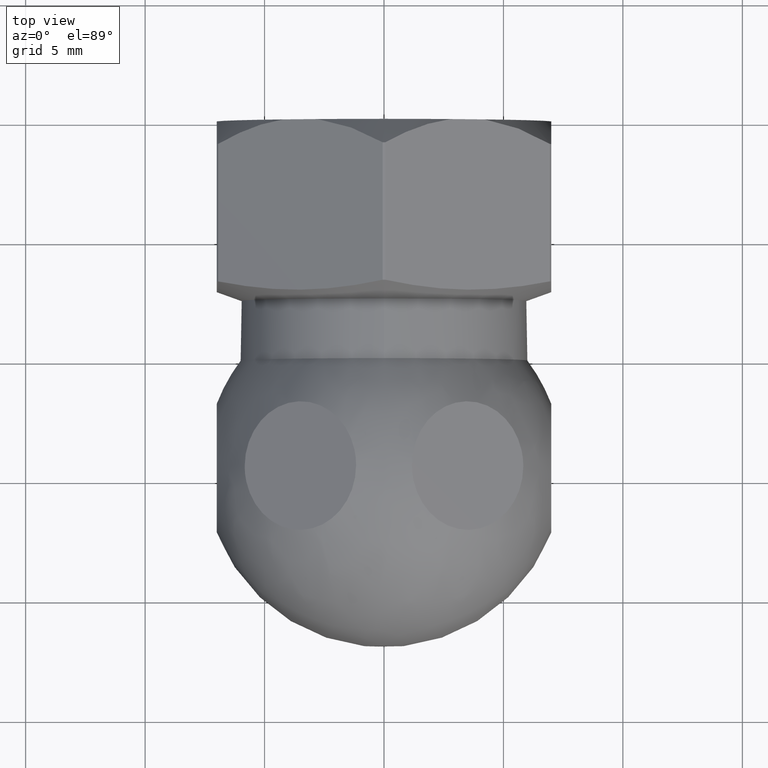
[diagram: clean part render]
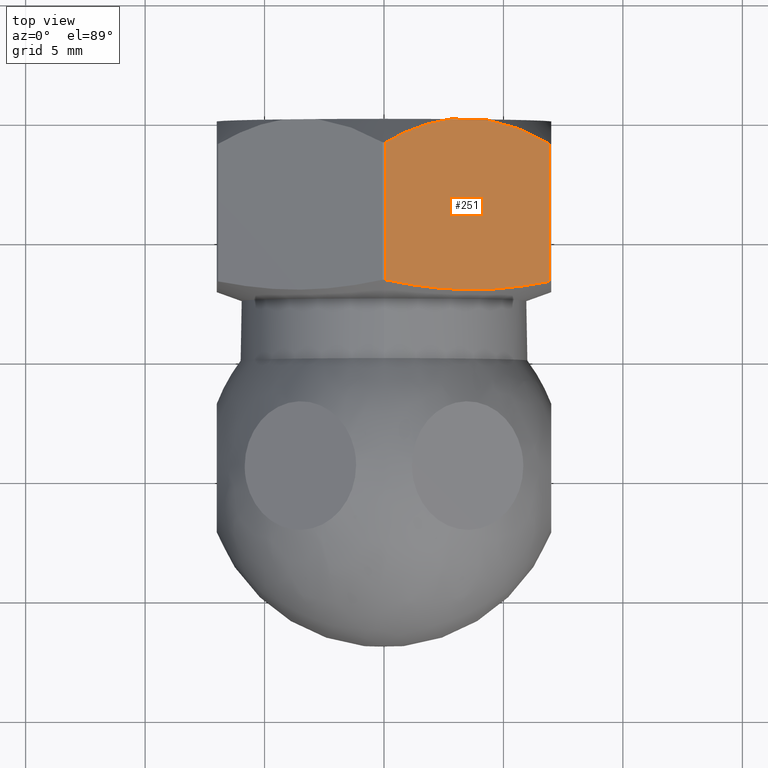
[diagram: same view with one face highlighted and labeled with its STEP entity id]
A machine part, top view. The second image highlights one B-rep face of the part: STEP entity #251.
In plain terms, the highlighted planar face has unit normal (0.5, -0, 0.866).
Its self-contained STEP definition (entity closure, byte-faithful):
#33 = CARTESIAN_POINT ( 'NONE',  ( 2.295191695800010900, -0.06574922584034688400, 6.757774225242832800 ) ) ;
#80 = FACE_OUTER_BOUND ( 'NONE', #336, .T. ) ;
#95 = CARTESIAN_POINT ( 'NONE',  ( 6.942655225258548100, -1.000000000000000900, 4.074559905460978900 ) ) ;
#109 = AXIS2_PLACEMENT_3D ( 'NONE', #254, #856, #133 ) ;
#111 = ORIENTED_EDGE ( 'NONE', *, *, #252, .T. ) ;
#133 = DIRECTION ( 'NONE',  ( 0.8660254037844387100, 0.0000000000000000000, -0.4999999999999998900 ) ) ;
#139 = B_SPLINE_CURVE_WITH_KNOTS ( 'NONE', 3,
 ( #272, #33, #1224, #770, #289, #896 ),
 .UNSPECIFIED., .F., .F.,
 ( 4, 2, 4 ),
 ( 5.280302018982779200E-018, 0.001646477452302868700, 0.003292954904605732200 ),
 .UNSPECIFIED. ) ;
#158 = VECTOR ( 'NONE', #993, 1000.000000000000000 ) ;
#180 = CARTESIAN_POINT ( 'NONE',  ( 2.774138442952029000, 2.860369802980142100E-016, 6.481254191847118500 ) ) ;
#204 = CARTESIAN_POINT ( 'NONE',  ( 4.225861557047968700, 0.0000000000000000000, 5.643101461135026800 ) ) ;
#208 = VERTEX_POINT ( 'NONE', #1062 ) ;
#251 = ADVANCED_FACE ( 'NONE', ( #80 ), #1447, .T. ) ;
#252 = EDGE_CURVE ( 'NONE', #349, #722, #580, .T. ) ;
#254 = CARTESIAN_POINT ( 'NONE',  ( -1.724735407799026300E-015, -22.00000000000001800, 8.082903768654762900 ) ) ;
#259 = CARTESIAN_POINT ( 'NONE',  ( 6.942655225258548900, -22.00000000000001800, 4.074559905460978900 ) ) ;
#272 = CARTESIAN_POINT ( 'NONE',  ( 2.774138442952029000, 2.860369802980142100E-016, 6.481254191847118500 ) ) ;
#288 = VECTOR ( 'NONE', #1037, 1000.000000000000200 ) ;
#289 = CARTESIAN_POINT ( 'NONE',  ( 0.4877129283583409600, -0.7545988947686848000, 7.801322578179814100 ) ) ;
#302 = ORIENTED_EDGE ( 'NONE', *, *, #532, .T. ) ;
#327 = CARTESIAN_POINT ( 'NONE',  ( 4.706457348244070400, -0.06597560459731738300, 5.365629351716557400 ) ) ;
#336 = EDGE_LOOP ( 'NONE', ( #1056, #961, #996, #578, #111, #302 ) ) ;
#349 = VERTEX_POINT ( 'NONE', #1367 ) ;
#352 = CARTESIAN_POINT ( 'NONE',  ( 6.368879354382124300, -6.872942585530520200, 4.405829558965995900 ) ) ;
#364 = CARTESIAN_POINT ( 'NONE',  ( 5.795103483505699600, -6.969444586219488300, 4.737099212471011200 ) ) ;
#372 = CARTESIAN_POINT ( 'NONE',  ( 0.05734477474145105400, -6.753861019754299200, 8.049795747521168100 ) ) ;
#438 = DIRECTION ( 'NONE',  ( -0.0000000000000000000, -1.000000000000000000, -0.0000000000000000000 ) ) ;
#494 = CARTESIAN_POINT ( 'NONE',  ( 0.6311206456178745100, -6.872942585530519300, 7.718526094016152000 ) ) ;
#532 = EDGE_CURVE ( 'NONE', #722, #654, #591, .T. ) ;
#541 = EDGE_CURVE ( 'NONE', #979, #654, #936, .T. ) ;
#566 = CARTESIAN_POINT ( 'NONE',  ( 5.169911220093620600, -0.1940459531167997000, 5.098054134047243800 ) ) ;
#578 = ORIENTED_EDGE ( 'NONE', *, *, #1540, .F. ) ;
#580 = LINE ( 'NONE', #259, #158 ) ;
#591 = B_SPLINE_CURVE_WITH_KNOTS ( 'NONE', 3,
 ( #95, #684, #1278, #566, #327, #204 ),
 .UNSPECIFIED., .F., .F.,
 ( 4, 2, 4 ),
 ( 1.301042606982605300E-018, 0.001646305746778636600, 0.003292611493557271900 ),
 .UNSPECIFIED. ) ;
#621 = CARTESIAN_POINT ( 'NONE',  ( 4.225861557047968700, 0.0000000000000000000, 5.643101461135026800 ) ) ;
#654 = VERTEX_POINT ( 'NONE', #621 ) ;
#684 = CARTESIAN_POINT ( 'NONE',  ( 6.511686330448315000, -0.7542563449039577600, 4.323379912892022500 ) ) ;
#708 = CARTESIAN_POINT ( 'NONE',  ( 2.774138442952023700, -3.326508448038553900E-016, 6.481254191847120300 ) ) ;
#722 = VERTEX_POINT ( 'NONE', #1317 ) ;
#770 = CARTESIAN_POINT ( 'NONE',  ( 0.9290874032246948500, -0.5375248664890496200, 7.546494906302291900 ) ) ;
#832 = CARTESIAN_POINT ( 'NONE',  ( 6.942655225258550700, -6.753861019754299200, 4.074559905460978000 ) ) ;
#852 = CARTESIAN_POINT ( 'NONE',  ( 3.499999999999998700, -7.170878824217372700, 6.062177826491075700 ) ) ;
#856 = DIRECTION ( 'NONE',  ( 0.4999999999999998900, -0.0000000000000000000, 0.8660254037844387100 ) ) ;
#896 = CARTESIAN_POINT ( 'NONE',  ( 0.05734477474145105400, -1.000000000000002200, 8.049795747521168100 ) ) ;
#901 = CARTESIAN_POINT ( 'NONE',  ( 0.05734477474145318500, -22.00000000000001800, 8.049795747521166300 ) ) ;
#936 = LINE ( 'NONE', #708, #288 ) ;
#961 = ORIENTED_EDGE ( 'NONE', *, *, #1253, .T. ) ;
#968 = VECTOR ( 'NONE', #438, 1000.000000000000000 ) ;
#979 = VERTEX_POINT ( 'NONE', #180 ) ;
#993 = DIRECTION ( 'NONE',  ( 0.0000000000000000000, 1.000000000000000000, 0.0000000000000000000 ) ) ;
#996 = ORIENTED_EDGE ( 'NONE', *, *, #1451, .T. ) ;
#1037 = DIRECTION ( 'NONE',  ( 0.8660254037844391500, 0.0000000000000000000, -0.4999999999999990000 ) ) ;
#1056 = ORIENTED_EDGE ( 'NONE', *, *, #541, .F. ) ;
#1062 = CARTESIAN_POINT ( 'NONE',  ( 0.05734477474145105400, -6.753861019754299200, 8.049795747521168100 ) ) ;
#1197 = CARTESIAN_POINT ( 'NONE',  ( 1.204896516494300600, -6.969444586219485600, 7.387256440511138500 ) ) ;
#1224 = CARTESIAN_POINT ( 'NONE',  ( 1.832189256707145800, -0.1933787047093181700, 7.025088808088552700 ) ) ;
#1253 = EDGE_CURVE ( 'NONE', #979, #1543, #139, .T. ) ;
#1278 = CARTESIAN_POINT ( 'NONE',  ( 6.072503984105396500, -0.5382650272987955500, 4.576941958776440200 ) ) ;
#1294 = B_SPLINE_CURVE_WITH_KNOTS ( 'NONE', 3,
 ( #832, #352, #364, #1320, #852, #1449, #1197, #494, #372 ),
 .UNSPECIFIED., .F., .F.,
 ( 4, 2, 1, 2, 4 ),
 ( 1.939479807224432100E-018, 0.001987617921030096100, 0.003975235842060190400, 0.005962853763090284300, 0.007950471684120379000 ),
 .UNSPECIFIED. ) ;
#1317 = CARTESIAN_POINT ( 'NONE',  ( 6.942655225258548100, -1.000000000000000900, 4.074559905460978900 ) ) ;
#1320 = CARTESIAN_POINT ( 'NONE',  ( 4.647551741752848500, -7.101180707250231100, 5.399638519481042600 ) ) ;
#1367 = CARTESIAN_POINT ( 'NONE',  ( 6.942655225258550700, -6.753861019754299200, 4.074559905460978000 ) ) ;
#1447 = PLANE ( 'NONE',  #109 ) ;
#1449 = CARTESIAN_POINT ( 'NONE',  ( 2.352448258247150600, -7.101180707250230200, 6.724717133501104400 ) ) ;
#1451 = EDGE_CURVE ( 'NONE', #1543, #208, #1483, .T. ) ;
#1456 = CARTESIAN_POINT ( 'NONE',  ( 0.05734477474145105400, -1.000000000000002200, 8.049795747521168100 ) ) ;
#1483 = LINE ( 'NONE', #901, #968 ) ;
#1540 = EDGE_CURVE ( 'NONE', #349, #208, #1294, .T. ) ;
#1543 = VERTEX_POINT ( 'NONE', #1456 ) ;